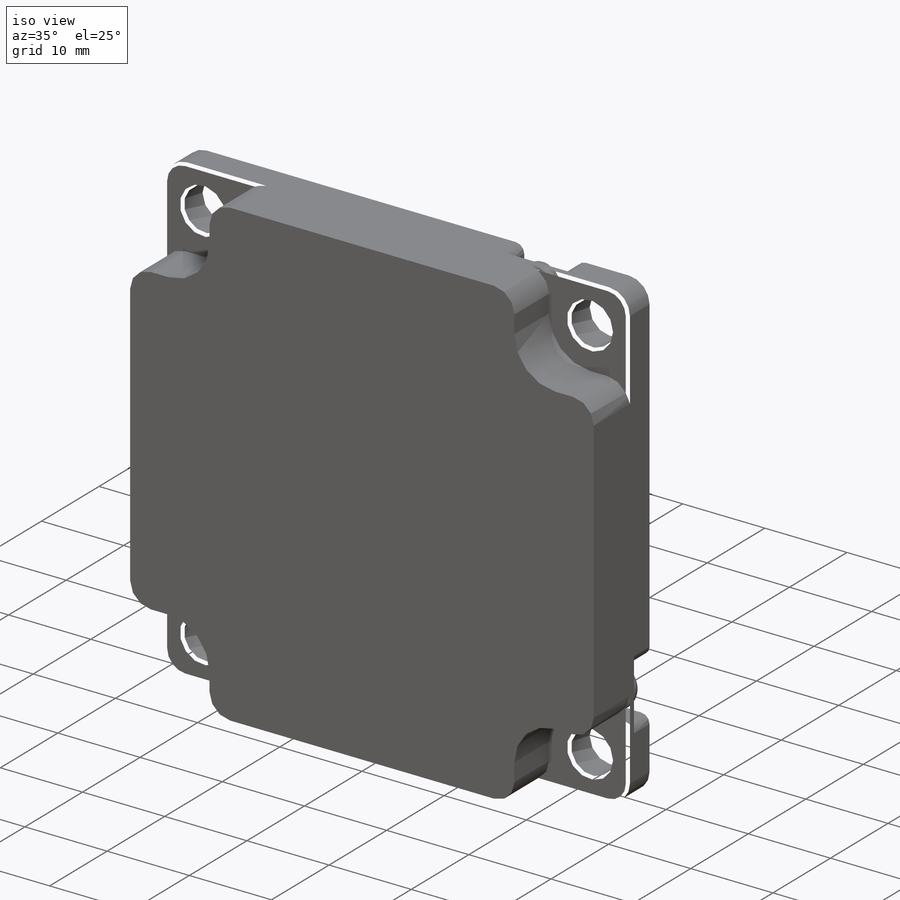
[diagram: iso view]
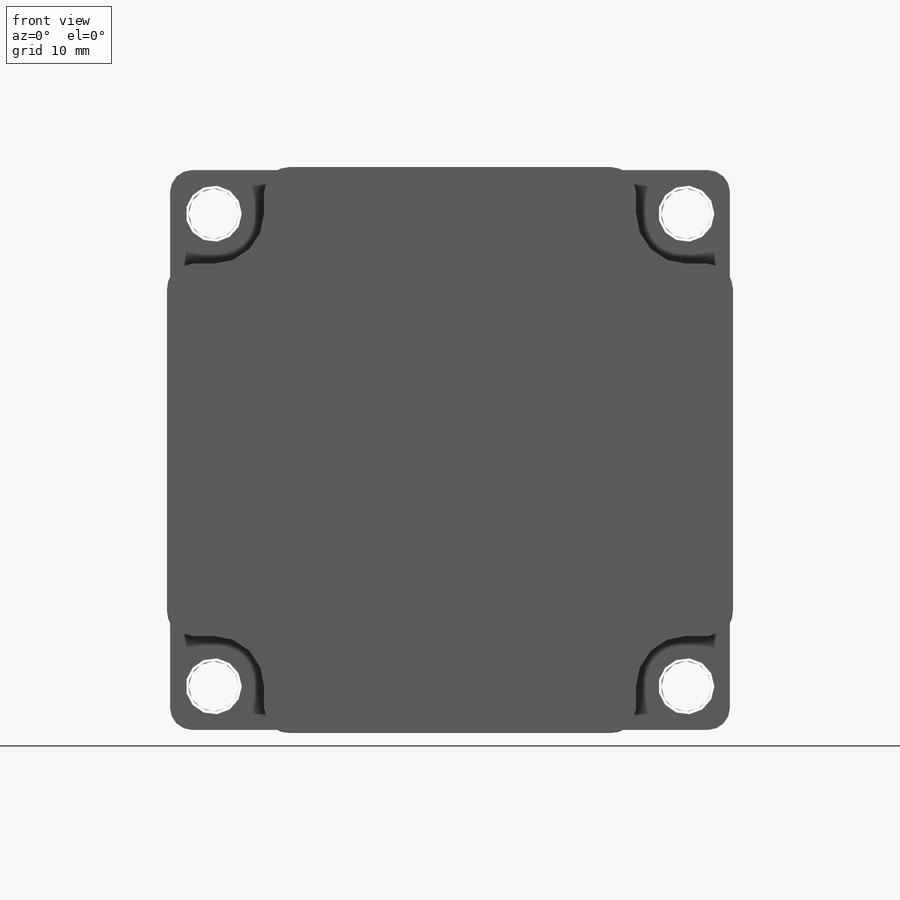
[diagram: front view]
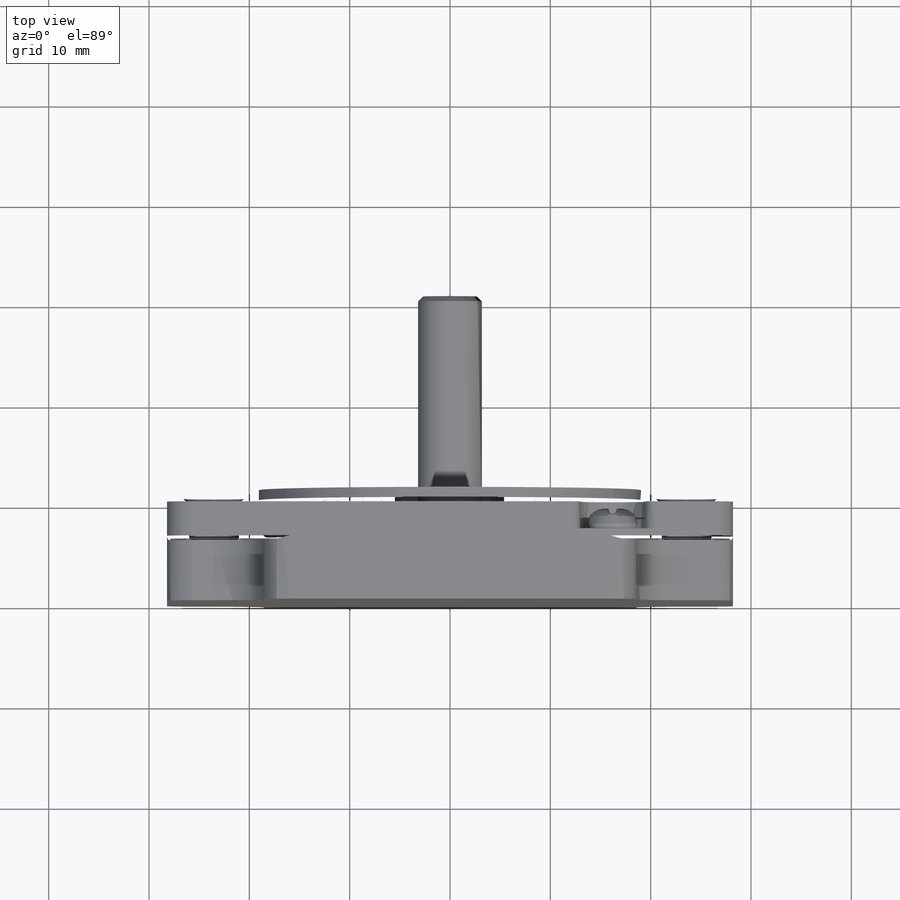
[diagram: top view]
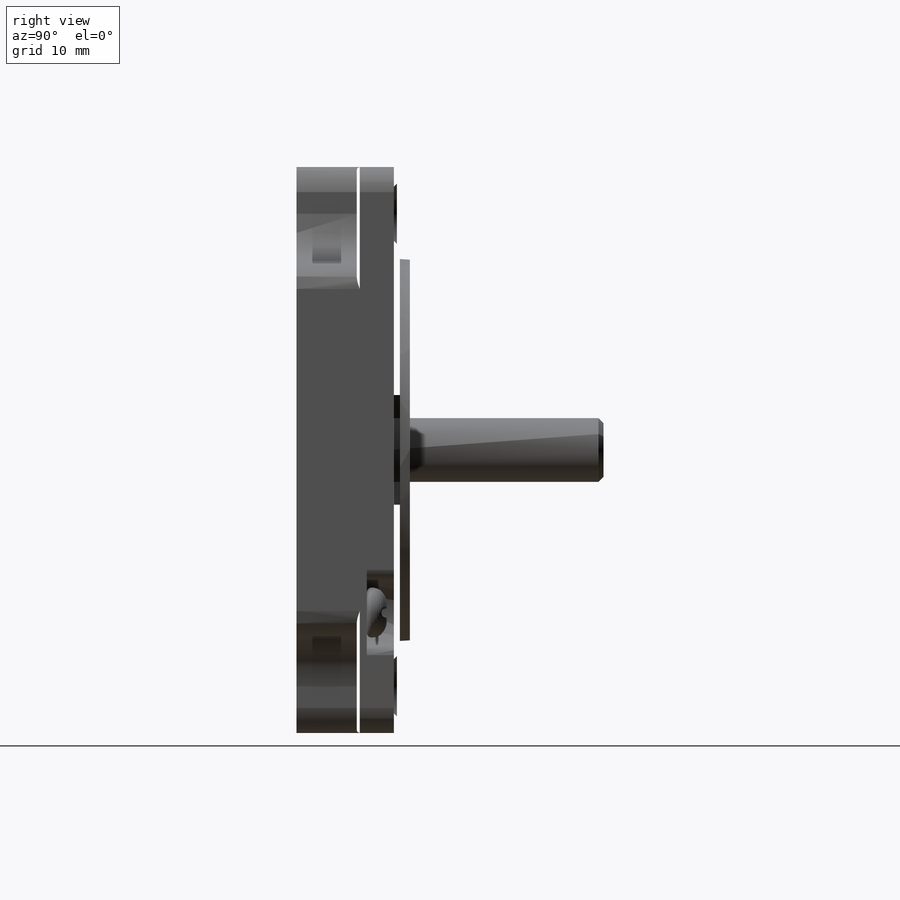
[diagram: right view]
SOLIDWORKS PART (.sldprt)
format: sldprt  version: not decoded by parser v0  size: 1,698,816 bytes
history: native  units: mm
features: sketch x17, cut_extrude x9, fillet x9, extrude x8, plane x3, chamfer x3, material x1, pattern_circular x1 (+8 scaffold rows collapsed)
feature tree (59):
  scaffold x8  (default folders/planes/origin — collapsed)
  material  "Легированная сталь"
  plane  "Спереди"
  plane  "Сверху"
  plane  "Справа"
  sketch  "Эскиз1"  dims[D1=56.4mm]
  extrude  "Бобышка-Вытянуть1"  Depth=10mm
  sketch  "Эскиз2"  dims[D1=5.0mm D2=47.1mm]
  cut_extrude  "Вырез-Вытянуть1"  [1 undecoded]
  sketch  "Эскиз3"  dims[D1=10.0mm D2=4.65mm]
  cut_extrude  "Вырез-Вытянуть2"  Depth=6mm
  fillet  "Скругление1"  Radius=2.5mm
  sketch  "Эскиз4"  dims[D1=38.1mm]
  extrude  "Бобышка-Вытянуть2"  Depth=1.6mm
  sketch  "Эскиз5"  dims[D1=6.35mm]
  extrude  "Бобышка-Вытянуть3"  Depth=20.6mm
  sketch  "Эскиз6"  dims[D1=11.0mm]
  cut_extrude  "Вырез-Вытянуть3"  Depth=2.5mm
  chamfer  "Фаска1"  Distance=0.5mm Angle=45deg
  sketch  "Эскиз7"  dims[D1=2.0mm]
  cut_extrude  "Вырез-Вытянуть4"  Depth=3mm
  sketch  "Эскиз8"  dims[D1=3.25mm D2=6.0mm D3=12.0mm]
  cut_extrude  "Вырез-Вытянуть5"  Depth=3mm
  fillet  "Скругление2"  Radius=1mm
  sketch  "Эскиз9"  dims[D1=5.0mm]
  extrude  "Бобышка-Вытянуть4"  Depth=2mm
  fillet  "Скругление3"  Radius=1.5mm
  fillet  "Скругление4"  Radius=0.5mm
  sketch  "Эскиз10"  dims[D4=0.5mm D1=4.0mm D2=4.0mm D3=0.8mm]
  cut_extrude  "Вырез-Вытянуть6"  Depth=1.5mm
  fillet  "Скругление5"  Radius=0.5mm
  fillet  "Скругление6"  Radius=0.2mm
  pattern_circular  "Круговой массив2"  Count=4 Angle=90deg
  sketch  "Эскиз11"  dims[D1=0.0mm]
  extrude  "Бобышка-Вытянуть5"  Depth=54mm
  sketch  "Эскиз12"  dims[D1=0.0mm]
  extrude  "Бобышка-Вытянуть6"  Depth=11mm
  fillet  "Скругление7"  Radius=0.5mm
  sketch  "Эскиз13"  dims[D1=2.5mm]
  cut_extrude  "Вырез-Вытянуть7"  Depth=2mm
  chamfer  "Фаска2"  Distance=0.2mm Angle=45deg
  sketch  "Эскиз14"  dims[D1=11.0mm]
  cut_extrude  "Вырез-Вытянуть8"  Depth=4mm
  sketch  "Эскиз15"  dims[D1=6.5mm]
  extrude  "Бобышка-Вытянуть7"  Depth=1mm
  sketch  "Эскиз16"  dims[D1=2.0mm]
  cut_extrude  "Вырез-Вытянуть9"  Depth=3mm
  chamfer  "Фаска3"  Distance=1mm Angle=45deg
  fillet  "Скругление8"  Radius=0.5mm
  fillet  "Скругление9"  Radius=0.3mm
  sketch  "Эскиз17"  dims[c1.D2=6.0mm c1.D4=5.0mm c1.D1=12.0mm c2.D2=4.0mm c2.D3=0.4mm]
  extrude  "Бобышка-Вытянуть8"  Depth=2mm
decode coverage: 46 of 47 modeling features carry decoded parameters
note: 1 parameter value undecoded
note: suppression state not decoded; provenance and decode notes live in map.json
